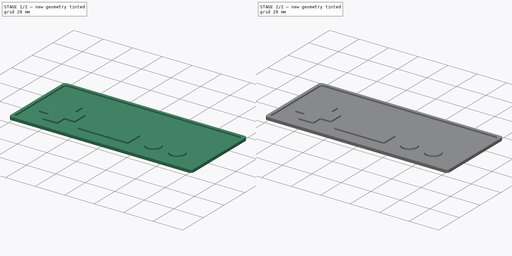
[diagram: build sequence overview — one tinted view per stage of 2, left to right]
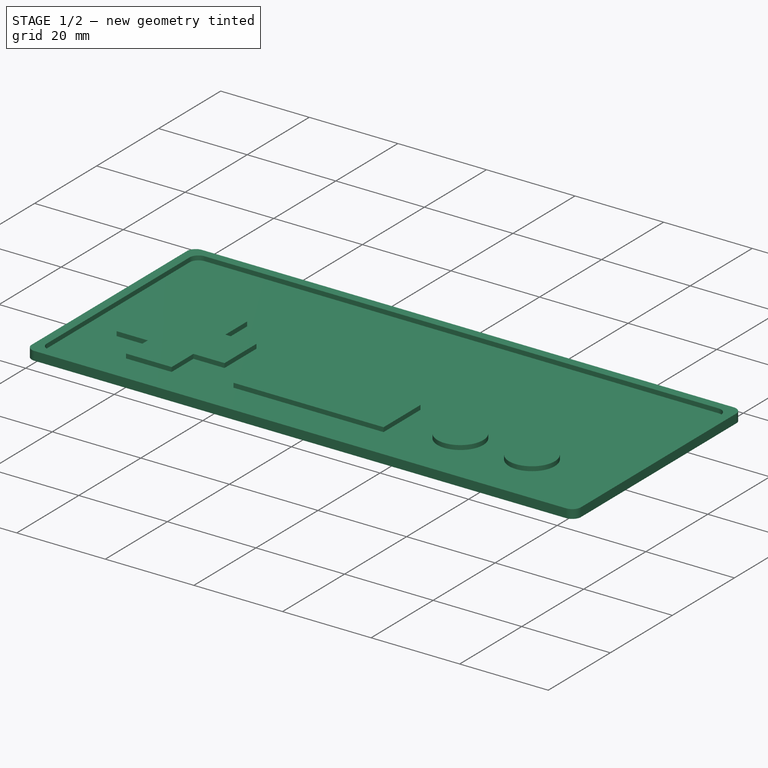
[diagram: stage 1 of 2 — iso view after this stage's code; geometry added in this stage tinted green]
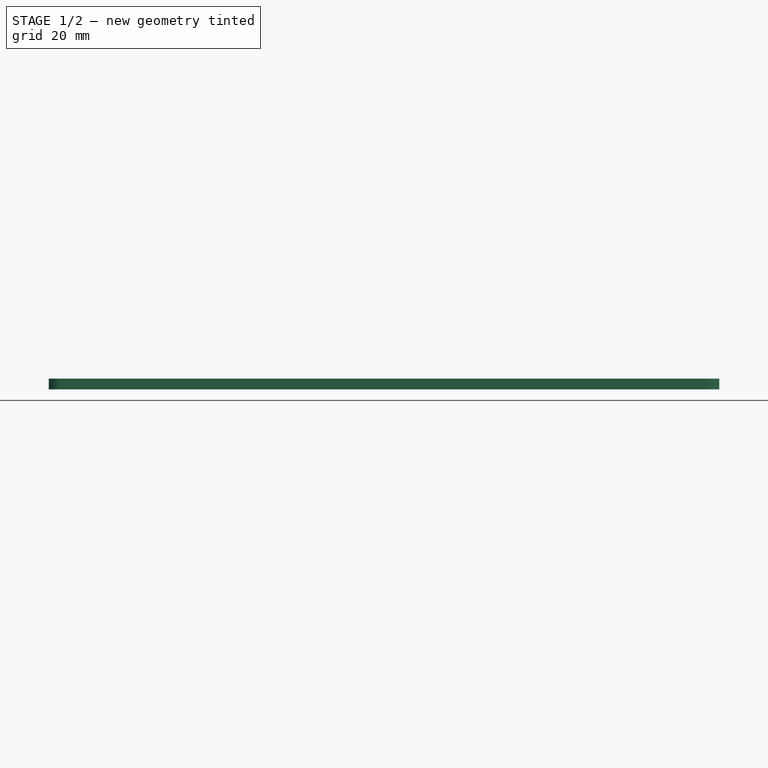
[diagram: stage 1 of 2 — front view after this stage's code; geometry added in this stage tinted green]
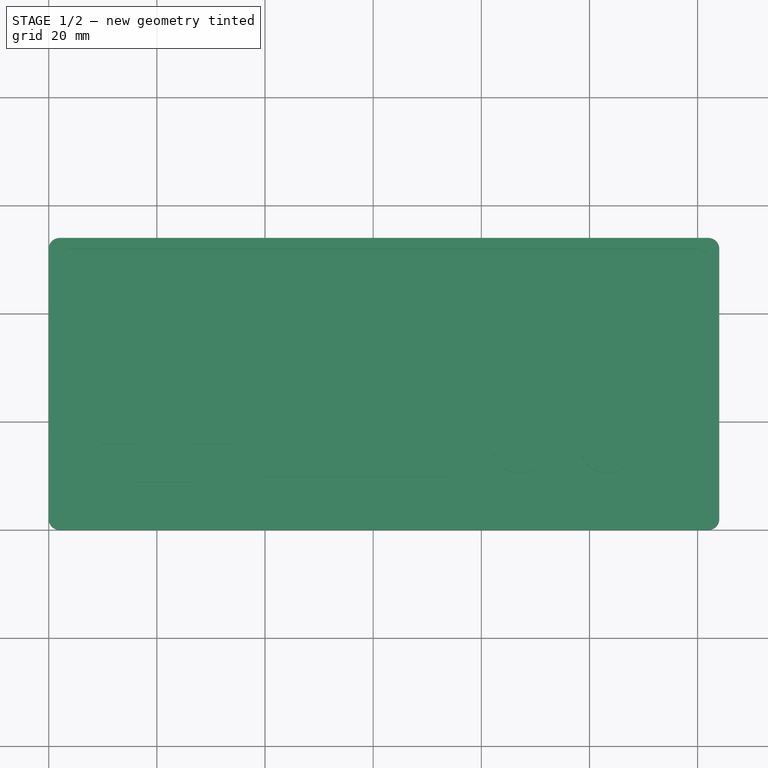
[diagram: stage 1 of 2 — top view after this stage's code; geometry added in this stage tinted green]
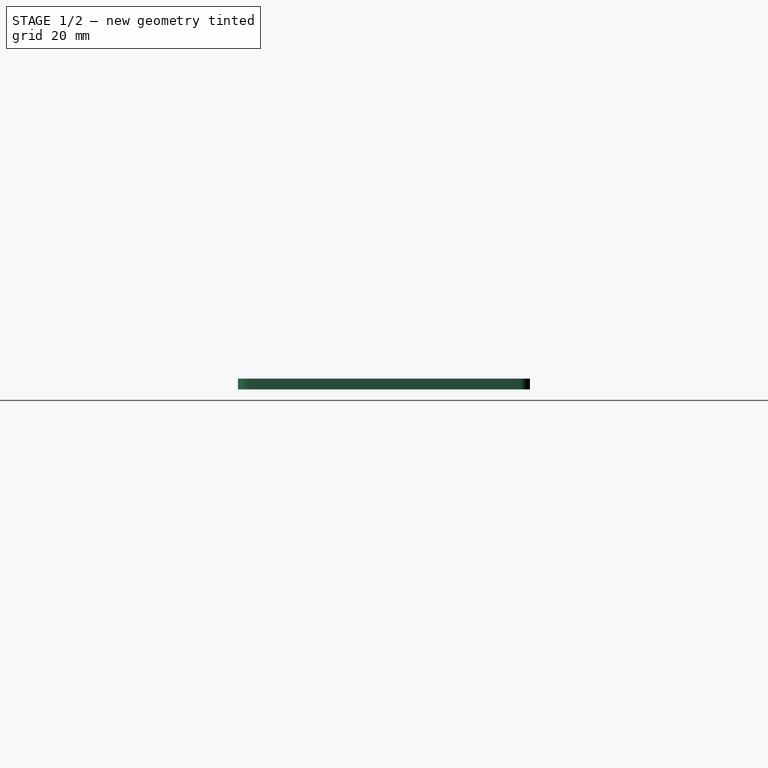
[diagram: stage 1 of 2 — right view after this stage's code; geometry added in this stage tinted green]
FCSTD DOCUMENT  (FreeCAD 0.20R29177 +426 (Git))
Label: NES Icon
License: All rights reserved
LicenseURL: http://en.wikipedia.org/wiki/All_rights_reserved
objects: Sketcher::SketchObject×2, PartDesign::Pad×2, PartDesign::Fillet×1, PartDesign::Body×1
note: 9 computed .brp shape members not serialized (recipe doc carries the construction recipe); baked Part::Feature solids carry a one-line shape summary decoded from their .brp

FEATURE [Sketcher::SketchObject] Sketch
  FullyConstrained = true
  MapMode = 5
  Support = -> [XY_Plane]
  sketch-geometry (12):
    g0: LineSegment StartX=0 StartY=0 StartZ=0 EndX=124 EndY=0 EndZ=0
    g1: LineSegment StartX=124 StartY=0 StartZ=0 EndX=124 EndY=54 EndZ=0
    g2: LineSegment StartX=124 StartY=54 StartZ=0 EndX=0 EndY=54 EndZ=0
    g3: LineSegment StartX=0 StartY=54 StartZ=0 EndX=0 EndY=0 EndZ=0
    g4: LineSegment StartX=2 StartY=54 StartZ=0 EndX=122 EndY=54 EndZ=0
    g5: LineSegment StartX=124 StartY=52 StartZ=0 EndX=124 EndY=2 EndZ=0
    g6: LineSegment StartX=122 StartY=0 StartZ=0 EndX=2 EndY=0 EndZ=0
    g7: LineSegment StartX=0 StartY=2 StartZ=0 EndX=0 EndY=52 EndZ=0
    g8: ArcOfCircle CenterX=2 CenterY=52 CenterZ=0 NormalX=0 NormalY=0 NormalZ=1 AngleXU=0 Radius=2 StartAngle=1.5708 EndAngle=3.14159
    g9: ArcOfCircle CenterX=122 CenterY=52 CenterZ=0 NormalX=0 NormalY=0 NormalZ=1 AngleXU=0 Radius=2 StartAngle=4.67e-14 EndAngle=1.5708
    g10: ArcOfCircle CenterX=122 CenterY=2 CenterZ=0 NormalX=0 NormalY=0 NormalZ=1 AngleXU=0 Radius=2 StartAngle=4.71239 EndAngle=6.28319
    g11: ArcOfCircle CenterX=2 CenterY=2 CenterZ=0 NormalX=0 NormalY=0 NormalZ=1 AngleXU=0 Radius=2 StartAngle=3.14159 EndAngle=4.71239
  constraints (31):
    c: Coincident(g0,g1)
    c: Coincident(g1,g2)
    c: Coincident(g2,g3)
    c: Coincident(g3,g0)
    c: Horizontal(g0)
    c: Horizontal(g2)
    c: Vertical(g1)
    c: Vertical(g3)
    c: Coincident(g0,g-1)
    c: DistanceX(g0,g0) = 124
    c: DistanceY(g1,g1) = 54
    c: Horizontal(g4)
    c: Horizontal(g6)
    c: Vertical(g5)
    c: Vertical(g7)
    c: Tangent(g4,g8) = 1.5708
    c: Tangent(g7,g8) = 1.5708
    c: Tangent(g4,g9) = 1.5708
    c: Tangent(g5,g9) = 1.5708
    c: Tangent(g5,g10) = 1.5708
    c: Tangent(g6,g10) = 1.5708
    c: Tangent(g6,g11) = 1.5708
    c: Tangent(g7,g11) = 1.5708
    c: PointOnObject(g4,g2)
    c: PointOnObject(g7,g3)
    c: PointOnObject(g5,g1)
    c: PointOnObject(g6,g0)
    c: Equal(g9,g8)
    c: Equal(g11,g10)
    c: Equal(g10,g9)
    c: Radius(g8) = 2
FEATURE [PartDesign::Pad] Pad
  Direction = (0,0,1)
  Length = 1
  Length2 = 10
  Profile = -> Sketch
  ReferenceAxis = -> Sketch [N_Axis]
  Type = 0
FEATURE [Sketcher::SketchObject] Sketch001
  ExternalGeometry = -> [Pad]
  FullyConstrained = true
  MapMode = 5
  Placement = pos=(0,0,1) rot=(0,0,1;0rad)
  Support = -> [Pad]
  sketch-geometry (49):
    g0: ArcOfCircle CenterX=2 CenterY=52 CenterZ=0 NormalX=0 NormalY=0 NormalZ=1 AngleXU=0 Radius=2 StartAngle=1.5708 EndAngle=3.14159
    g1: ArcOfCircle CenterX=122 CenterY=52 CenterZ=0 NormalX=0 NormalY=0 NormalZ=1 AngleXU=0 Radius=2 StartAngle=4.65e-14 EndAngle=1.5708
    g2: ArcOfCircle CenterX=122 CenterY=2 CenterZ=0 NormalX=0 NormalY=0 NormalZ=1 AngleXU=0 Radius=2 StartAngle=4.71239 EndAngle=6.28319
    g3: ArcOfCircle CenterX=2 CenterY=2 CenterZ=0 NormalX=0 NormalY=0 NormalZ=1 AngleXU=0 Radius=2 StartAngle=3.14159 EndAngle=4.71239
    g4: LineSegment StartX=0 StartY=2 StartZ=0 EndX=0 EndY=52 EndZ=0
    g5: LineSegment StartX=2 StartY=54 StartZ=0 EndX=122 EndY=54 EndZ=0
    g6: LineSegment StartX=124 StartY=52 StartZ=0 EndX=124 EndY=2 EndZ=0
    g7: LineSegment StartX=122 StartY=0 StartZ=0 EndX=2 EndY=0 EndZ=0
    g8: LineSegment StartX=4 StartY=52 StartZ=0 EndX=120 EndY=52 EndZ=0
    g9: LineSegment StartX=122 StartY=50 StartZ=0 EndX=122 EndY=4 EndZ=0
    g10: LineSegment StartX=120 StartY=2 StartZ=0 EndX=4 EndY=2 EndZ=0
    g11: LineSegment StartX=2 StartY=4 StartZ=0 EndX=2 EndY=50 EndZ=0
    g12: ArcOfCircle CenterX=4 CenterY=50 CenterZ=0 NormalX=0 NormalY=0 NormalZ=1 AngleXU=0 Radius=2 StartAngle=1.5708 EndAngle=3.14159
    g13: ArcOfCircle CenterX=120 CenterY=50 CenterZ=0 NormalX=0 NormalY=0 NormalZ=1 AngleXU=0 Radius=2 StartAngle=0 EndAngle=1.5708
    g14: ArcOfCircle CenterX=120 CenterY=4 CenterZ=0 NormalX=0 NormalY=0 NormalZ=1 AngleXU=0 Radius=2 StartAngle=4.71239 EndAngle=6.28319
    g15: ArcOfCircle CenterX=4 CenterY=4 CenterZ=0 NormalX=0 NormalY=0 NormalZ=1 AngleXU=0 Radius=2 StartAngle=3.14159 EndAngle=4.71239
    g16: LineSegment StartX=62 StartY=54 StartZ=0 EndX=62 EndY=52 EndZ=0
    g17: LineSegment StartX=0 StartY=27 StartZ=0 EndX=2 EndY=27 EndZ=0
    g18: LineSegment StartX=124 StartY=27 StartZ=0 EndX=122 EndY=27 EndZ=0
    g19: LineSegment StartX=62 StartY=2 StartZ=0 EndX=62 EndY=0 EndZ=0
    g20: LineSegment StartX=9.48 StartY=26.12 StartZ=0 EndX=16.5 EndY=26.12 EndZ=0
    g21: LineSegment StartX=16.5 StartY=15.82 StartZ=0 EndX=9.48 EndY=15.82 EndZ=0
    g22: LineSegment StartX=9.48 StartY=15.82 StartZ=0 EndX=9.48 EndY=26.12 EndZ=0
    g23: LineSegment StartX=26.8 StartY=15.82 StartZ=0 EndX=26.8 EndY=8.8 EndZ=0
    g24: LineSegment StartX=26.8 StartY=8.8 StartZ=0 EndX=16.5 EndY=8.8 EndZ=0
    g25: LineSegment StartX=16.5 StartY=8.8 StartZ=0 EndX=16.5 EndY=15.82 EndZ=0
    g26: LineSegment StartX=26.8 StartY=15.82 StartZ=0 EndX=33.82 EndY=15.82 EndZ=0
    g27: LineSegment StartX=33.82 StartY=15.82 StartZ=0 EndX=33.82 EndY=26.12 EndZ=0
    g28: LineSegment StartX=33.82 StartY=26.12 StartZ=0 EndX=26.8 EndY=26.12 EndZ=0
    g29: LineSegment StartX=16.5 StartY=26.12 StartZ=0 EndX=16.5 EndY=33.14 EndZ=0
    g30: LineSegment StartX=16.5 StartY=33.14 StartZ=0 EndX=26.8 EndY=33.14 EndZ=0
    g31: LineSegment StartX=26.8 StartY=33.14 StartZ=0 EndX=26.8 EndY=26.12 EndZ=0
    g32: LineSegment StartX=9.48 StartY=26.12 StartZ=0 EndX=0 EndY=26.12 EndZ=0
    g33: LineSegment StartX=26.8 StartY=8.8 StartZ=0 EndX=26.8 EndY=0 EndZ=0
    g34: LineSegment StartX=40.14 StartY=21.615 StartZ=0 EndX=74.01 EndY=21.615 EndZ=0
    g35: LineSegment StartX=74.01 StartY=21.615 StartZ=0 EndX=74.01 EndY=9.715 EndZ=0
    g36: LineSegment StartX=74.01 StartY=9.715 StartZ=0 EndX=40.14 EndY=9.715 EndZ=0
    g37: LineSegment StartX=40.14 StartY=9.715 StartZ=0 EndX=40.14 EndY=21.615 EndZ=0
    g38: Circle CenterX=87.175 CenterY=15.665 CenterZ=0 NormalX=0 NormalY=0 NormalZ=1 AngleXU=0 Radius=5.16
    g39: Circle CenterX=103.335 CenterY=15.665 CenterZ=0 NormalX=0 NormalY=0 NormalZ=1 AngleXU=0 Radius=5.16
    g40: LineSegment StartX=87.175 StartY=20.825 StartZ=0 EndX=87.175 EndY=10.505 EndZ=0
    g41: LineSegment StartX=82.015 StartY=15.665 StartZ=0 EndX=92.335 EndY=15.665 EndZ=0
    g42: LineSegment StartX=103.335 StartY=10.505 StartZ=0 EndX=103.335 EndY=20.825 EndZ=0
    g43: LineSegment StartX=98.175 StartY=15.665 StartZ=0 EndX=108.495 EndY=15.665 EndZ=0
    g44: LineSegment StartX=40.14 StartY=9.715 StartZ=0 EndX=40.14 EndY=0 EndZ=0
    g45: LineSegment StartX=40.14 StartY=9.715 StartZ=0 EndX=0 EndY=9.715 EndZ=0
    g46: LineSegment StartX=92.335 StartY=15.665 StartZ=0 EndX=98.175 EndY=15.665 EndZ=0
    g47: LineSegment StartX=108.495 StartY=15.665 StartZ=0 EndX=124 EndY=15.665 EndZ=0
    g48: LineSegment StartX=103.335 StartY=10.505 StartZ=0 EndX=103.335 EndY=0 EndZ=0
  constraints (135):
    c: Coincident(g0,g-3)
    c: Coincident(g0,g-3)
    c: Coincident(g0,g-3)
    c: Coincident(g1,g-5)
    c: Coincident(g1,g-5)
    c: Coincident(g1,g-5)
    c: Coincident(g2,g-4)
    c: Coincident(g2,g-4)
    c: Coincident(g2,g-4)
    c: Coincident(g3,g-6)
    c: Coincident(g3,g-6)
    c: Coincident(g3,g-6)
    c: Coincident(g4,g3)
    c: Coincident(g4,g0)
    c: Coincident(g5,g0)
    c: Coincident(g5,g1)
    c: Coincident(g6,g1)
    c: Coincident(g6,g2)
    c: Coincident(g7,g2)
    c: Coincident(g7,g3)
    c: Horizontal(g8)
    c: Horizontal(g10)
    c: Vertical(g9)
    c: Vertical(g11)
    c: Tangent(g11,g12) = 1.5708
    c: Tangent(g8,g12) = 1.5708
    c: Tangent(g8,g13) = 1.5708
    c: Tangent(g9,g13) = 1.5708
    c: Tangent(g9,g14) = 1.5708
    c: Tangent(g10,g14) = 1.5708
    c: Tangent(g10,g15) = 1.5708
    c: Tangent(g11,g15) = 1.5708
    c: Vertical(g16)
    c: Horizontal(g17)
    c: Horizontal(g18)
    c: Symmetric(g8,g8,g16)
    c: Symmetric(g0,g1,g16)
    c: Symmetric(g1,g2,g18)
    c: Symmetric(g9,g9,g18)
    c: Symmetric(g3,g2,g19)
    c: Symmetric(g10,g10,g19)
    c: Symmetric(g3,g0,g17)
    c: Symmetric(g11,g11,g17)
    c: Equal(g14,g15)
    c: Equal(g15,g12)
    c: Equal(g16,g17)
    c: Equal(g19,g18)
    c: DistanceY(g16,g16) = 2
    c: Equal(g13,g1)
    c: Coincident(g21,g22)
    c: Coincident(g22,g20)
    c: Horizontal(g20)
    c: Horizontal(g21)
    c: Vertical(g22)
    c: Coincident(g23,g24)
    c: Coincident(g24,g25)
    c: Horizontal(g24)
    c: Vertical(g23)
    c: Vertical(g25)
    c: Coincident(g26,g27)
    c: Coincident(g27,g28)
    c: Horizontal(g26)
    c: Horizontal(g28)
    c: Vertical(g27)
    c: Coincident(g29,g30)
    c: Coincident(g30,g31)
    c: Horizontal(g30)
    c: Vertical(g29)
    c: Vertical(g31)
    c: Coincident(g29,g20)
    c: Equal(g30,g22)
    c: Equal(g27,g24)
    c: Equal(g27,g30)
    c: Equal(g29,g31)
    c: Equal(g31,g28)
    c: Equal(g28,g26)
    c: Equal(g26,g23)
    c: Equal(g25,g21)
    c: Coincident(g26,g23)
    c: Coincident(g21,g25)
    c: Coincident(g31,g28)
    c: Distance(g21) = 7.02
    c: Distance(g22) = 10.3
    c: Coincident(g32,g20)
    c: PointOnObject(g32,g4)
    c: Horizontal(g32)
    c: Distance(g32) = 9.48
    c: Coincident(g33,g23)
    c: PointOnObject(g33,g7)
    c: Vertical(g33)
    c: Distance(g33) = 8.8
    c: Coincident(g34,g35)
    c: Coincident(g35,g36)
    c: Coincident(g36,g37)
    c: Coincident(g37,g34)
    c: Horizontal(g34)
    c: Horizontal(g36)
    c: Vertical(g35)
    c: Vertical(g37)
    c: Equal(g38,g39)
    c: PointOnObject(g40,g38)
    c: Vertical(g40)
    c: PointOnObject(g41,g38)
    c: Horizontal(g41)
    c: PointOnObject(g42,g39)
    c: Vertical(g42)
    c: PointOnObject(g43,g39)
    c: Horizontal(g43)
    c: Coincident(g44,g36)
    c: PointOnObject(g44,g7)
    c: Vertical(g44)
    c: Coincident(g45,g36)
    c: PointOnObject(g45,g4)
    c: Horizontal(g45)
    c: Coincident(g46,g41)
    c: Coincident(g46,g43)
    c: Coincident(g47,g43)
    c: PointOnObject(g47,g6)
    c: Horizontal(g47)
    c: Coincident(g48,g42)
    c: PointOnObject(g48,g7)
    c: Vertical(g48)
    c: Symmetric(g42,g42,g39)
    c: Symmetric(g43,g43,g39)
    c: Symmetric(g40,g40,g38)
    c: Symmetric(g41,g41,g38)
    c: Horizontal(g46)
    c: DistanceX(g36,g36) = 33.87
    c: DistanceY(g35,g35) = 11.9
    c: DistanceY(g44,g44) = 9.715
    c: DistanceX(g45,g45) = 40.14
    c: DistanceX(g47,g47) = 15.505
    c: DistanceY(g48,g48) = 10.505
    c: Diameter(g39) = 10.32
    c: DistanceX(g46,g46) = 5.84
FEATURE [PartDesign::Pad] Pad001
  BaseFeature = -> Pad
  Direction = (0,0,1)
  Length = 1
  Length2 = 10
  Profile = -> Sketch001
  ReferenceAxis = -> Sketch001 [N_Axis]
  Refine = true
  Type = 0
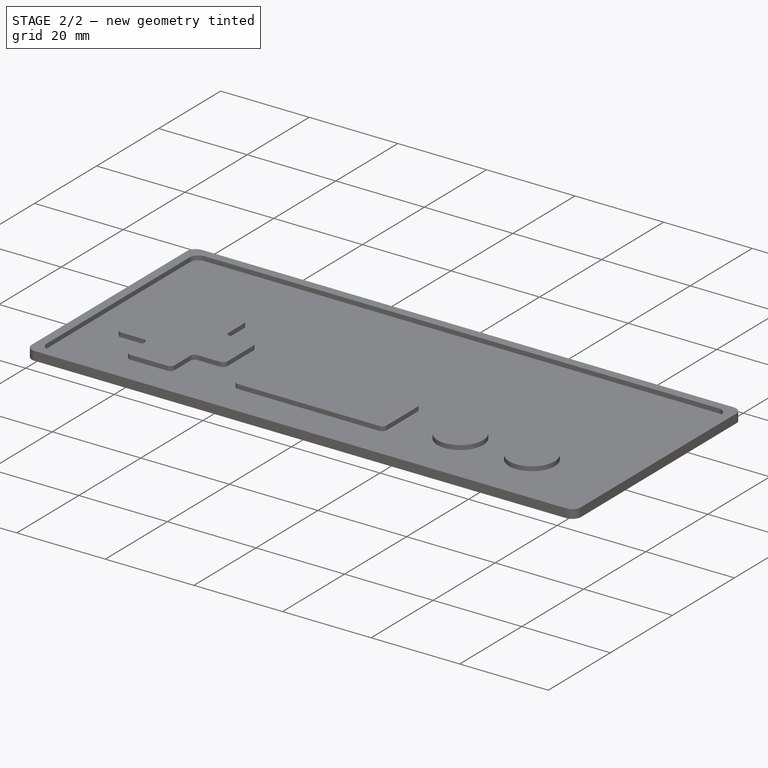
[diagram: stage 2 of 2 — iso view after this stage's code; geometry added in this stage tinted green]
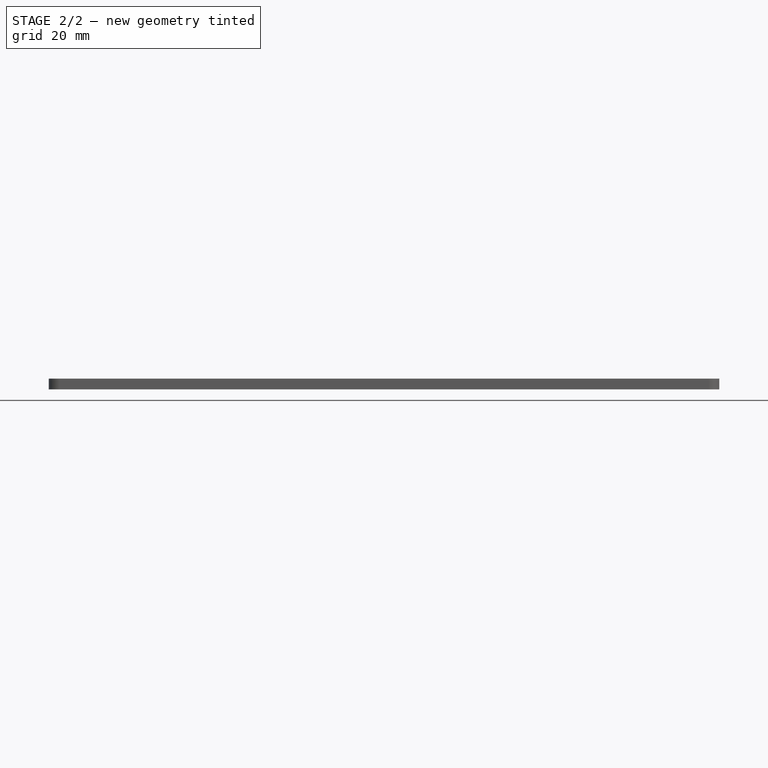
[diagram: stage 2 of 2 — front view after this stage's code; geometry added in this stage tinted green]
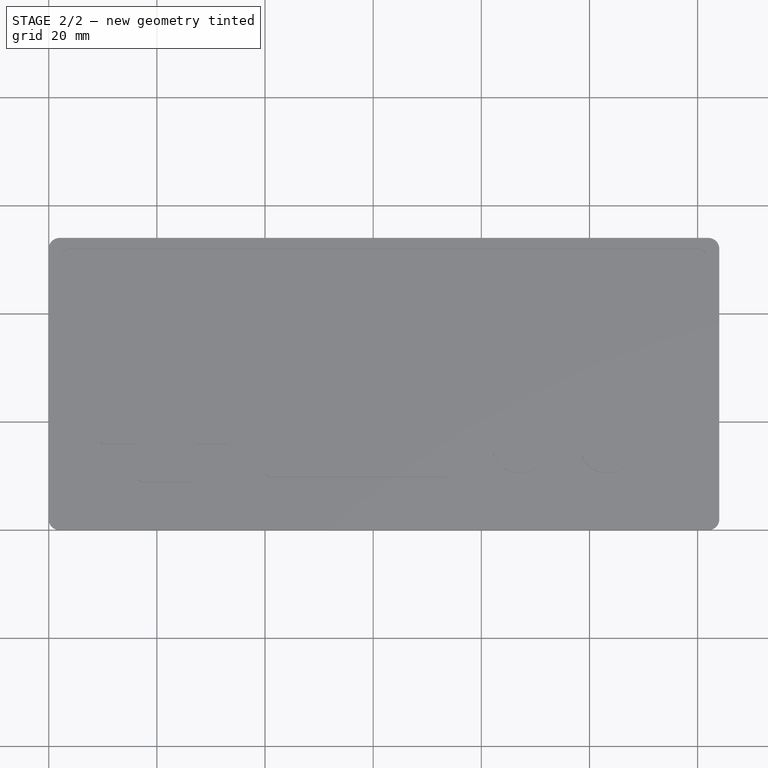
[diagram: stage 2 of 2 — top view after this stage's code; geometry added in this stage tinted green]
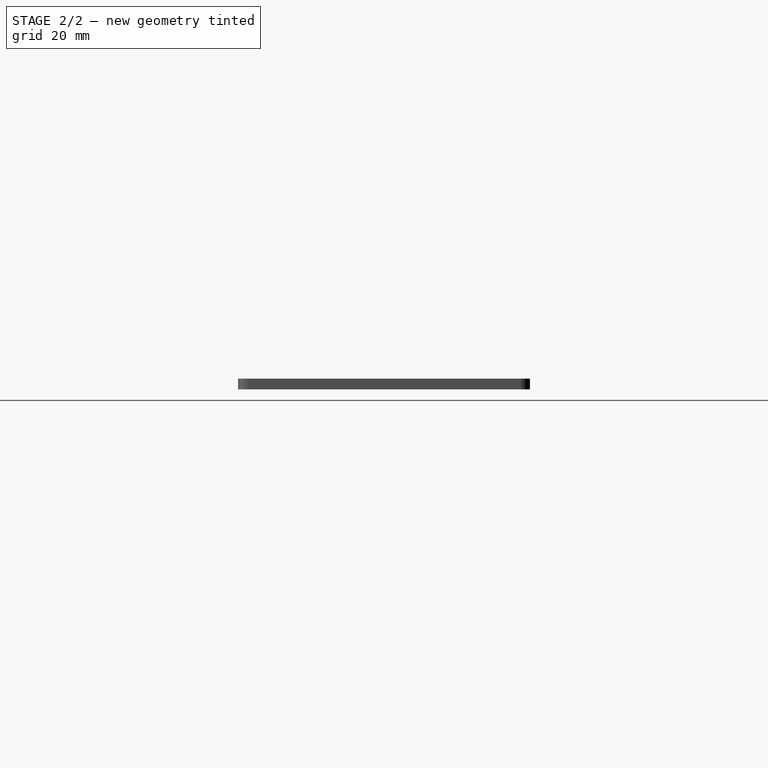
[diagram: stage 2 of 2 — right view after this stage's code; geometry added in this stage tinted green]
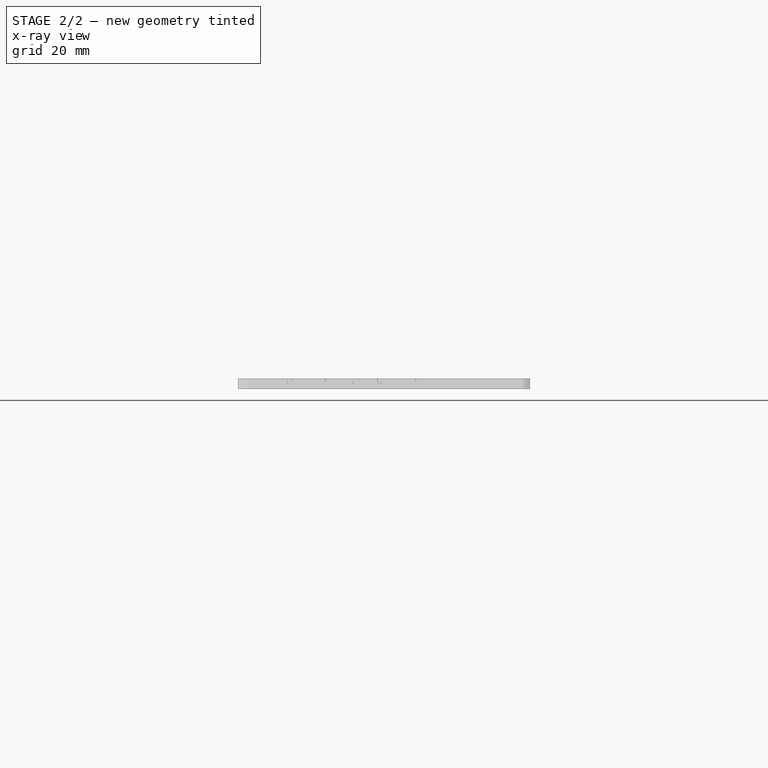
[diagram: stage 2 of 2 — x-ray composite at the right view; earlier geometry ghosted, this stage's added geometry solid]
FEATURE [PartDesign::Fillet] Fillet
  Base = -> Pad001 [Edge51,Edge52,Edge54,Edge58,Edge78,Edge80,Edge75,Edge72,Edge70,Edge66,Edge56,Edge76,Edge60,Edge64,Edge62,Edge68]
  BaseFeature = -> Pad001
  Radius = 1
  SupportTransform = false
  UseAllEdges = false
FEATURE [PartDesign::Body] Body  label="NES Icon"
  Group = -> [Sketch,Pad,Sketch001,Pad001,Fillet]
  Origin = -> Origin
  Tip = -> Fillet
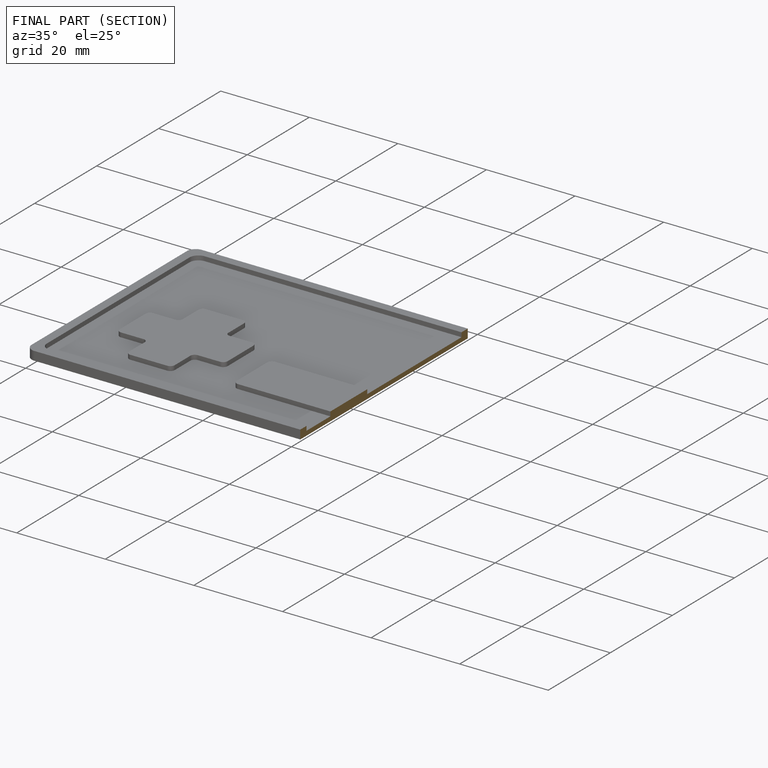
[diagram: finished part — half-section view (interior)]
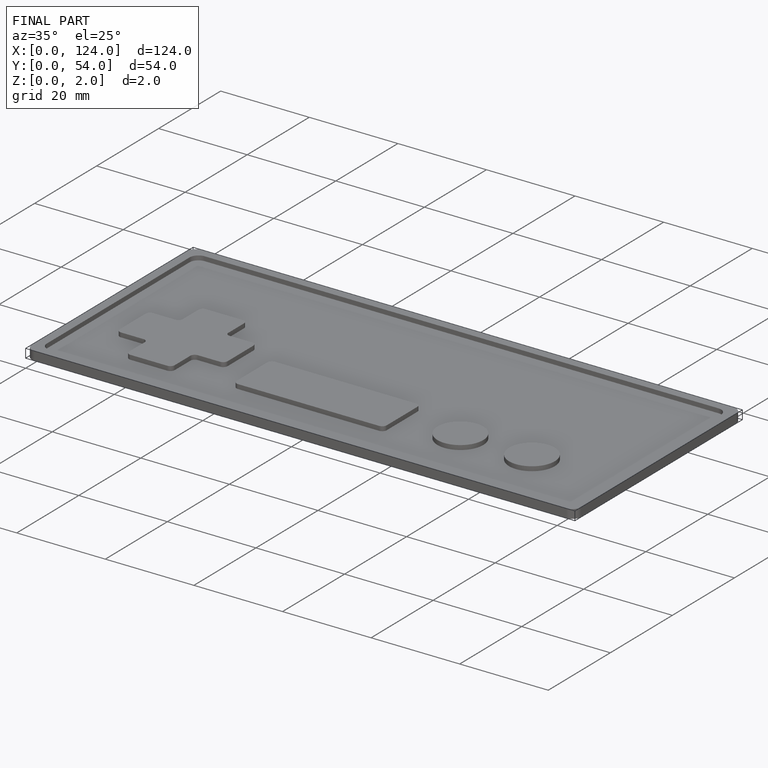
[diagram: finished part — iso view with bounding-box wireframe]
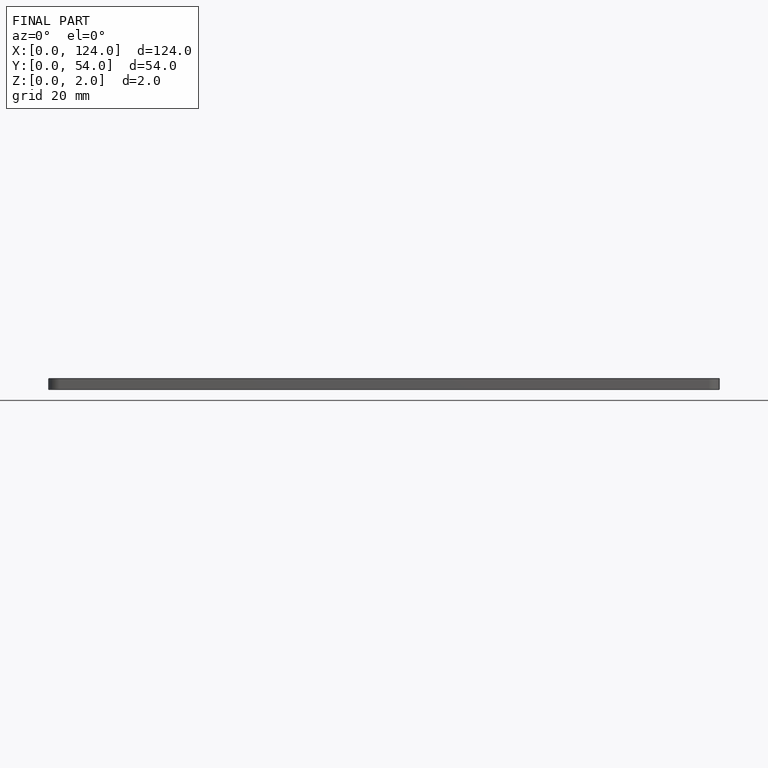
[diagram: finished part — front view with bounding-box wireframe]
